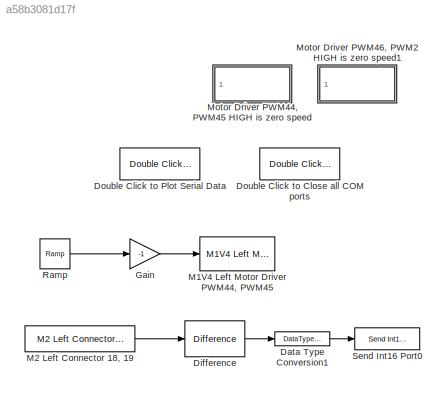
MODEL slx_a58b3081d17f
KIND model
CONFIG AbsTol = auto
CONFIG FixedStep = auto
CONFIG MaxStep = auto
CONFIG MinStep = auto
CONFIG RelTol = 1e-3
CONFIG SampleTimeConstraint = Unconstrained
CONFIG Solver = ode45
CONFIG SolverMode = Auto
CONFIG SolverName = ode45
CONFIG StartTime = 0.0
CONFIG StopTime = 10.0
BLOCK [DataTypeConversion] Data Type Conversion1
  OutDataTypeStr = int16
  RndMeth = Floor
  SaturateOnIntegerOverflow = off
BLOCK [Reference] Difference  REF=simulink/Discrete/Difference
  DoSatur = off
  ICPrevInput = 0.0
  InputProcessing = Inherited
  LockScale = off
  OutDataType = fixdt(1, 16)
  OutDataTypeStr = Inherit: Inherit via internal rule
  OutMax = []
  OutMin = []
  OutScaling = 2^-10
  OutputDataTypeScalingMode = Inherit via internal rule
  Ports = [1, 1]
  RndMeth = Floor
  SourceBlock = simulink/Discrete/Difference
  SourceType = Difference
BLOCK [Reference] Double Click to Close all COM ports  REF=RASPlib/Double Click to
Close all COM ports
  Ports = []
  SourceBlock = RASPlib/Double Click to\nClose all COM ports
BLOCK [Reference] Double Click to Plot Serial Data  REF=RASPlib/Double Click to
Plot Serial Data
  BaudRate = 9600
  COMport = 127
  DataType = int16
  NumSamples = 500
  Ports = []
  SourceBlock = RASPlib/Double Click to\nPlot Serial Data
BLOCK [Gain] Gain
  Gain = -1
  OutDataTypeStr = Inherit: Inherit via internal rule
  ParamDataTypeStr = Inherit: Inherit via internal rule
  SaturateOnIntegerOverflow = off
BLOCK [Reference] M1V4 Left Motor Driver PWM44, PWM45  REF=MinSegLibrary_MinSegMega/M1V4 Left Motor Driver
PWM44, PWM45
  PWMoffset = 0
  Ports = [1]
  SourceBlock = MinSegLibrary_MinSegMega/M1V4 Left Motor Driver\nPWM44, PWM45
  Vsupply = 3.9
BLOCK [Reference] M2 Left Connector 18, 19  REF=MinSegLibrary_MinSegMega/M2 Left Connector 18, 19
  Encoder = 1
  PWMFSelect = 1
  PWMTimer = 3
  PinA = 19
  PinB = 18
  Ports = [0, 1]
  SampleTime = -1
  SourceBlock = MinSegLibrary_MinSegMega/M2 Left Connector 18, 19
  SourceType = Encoder_arduino
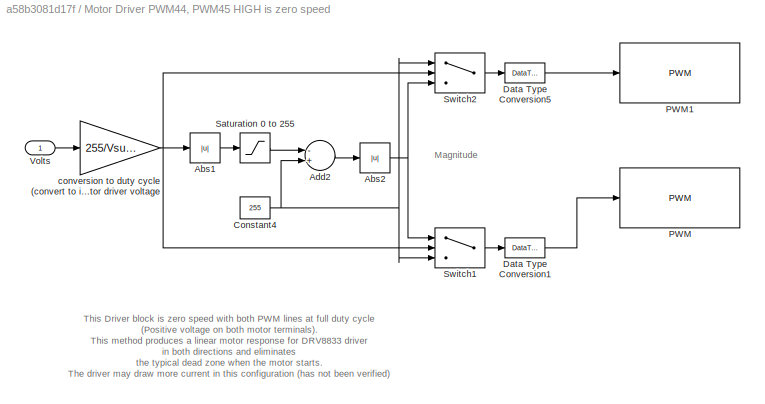
BLOCK [SubSystem] Motor Driver PWM44, PWM45 HIGH is zero speed
  Commented = on
  Ports = [1]
  RequestExecContextInheritance = off
BLOCK [Abs] Motor Driver PWM44, PWM45 HIGH is zero speed/Abs1
  SaturateOnIntegerOverflow = off
BLOCK [Abs] Motor Driver PWM44, PWM45 HIGH is zero speed/Abs2
  SaturateOnIntegerOverflow = off
BLOCK [Sum] Motor Driver PWM44, PWM45 HIGH is zero speed/Add2
  InputSameDT = off
  Inputs = -+
  OutDataTypeStr = Inherit: Inherit via internal rule
  Ports = [2, 1]
  SaturateOnIntegerOverflow = off
BLOCK [Constant] Motor Driver PWM44, PWM45 HIGH is zero speed/Constant4
  Value = 255
BLOCK [DataTypeConversion] Motor Driver PWM44, PWM45 HIGH is zero speed/Data Type Conversion1
  OutDataTypeStr = uint8
  RndMeth = Floor
  SaturateOnIntegerOverflow = off
BLOCK [DataTypeConversion] Motor Driver PWM44, PWM45 HIGH is zero speed/Data Type Conversion5
  OutDataTypeStr = uint8
  RndMeth = Floor
  SaturateOnIntegerOverflow = off
BLOCK [Reference] Motor Driver PWM44, PWM45 HIGH is zero speed/PWM  REF=arduinolib/PWM
  Ports = [1]
  SourceBlock = arduinolib/PWM
  SourceType = Arduino PWM
  blockPlatform = arduino
  pinNumber = 45
BLOCK [Reference] Motor Driver PWM44, PWM45 HIGH is zero speed/PWM1  REF=arduinolib/PWM
  Ports = [1]
  SourceBlock = arduinolib/PWM
  SourceType = Arduino PWM
  blockPlatform = arduino
  pinNumber = 44
BLOCK [Saturate] Motor Driver PWM44, PWM45 HIGH is zero speed/Saturation 0 to 255
  InputPortMap = u0
  LowerLimit = 0
  Ports = [1, 1]
  UpperLimit = 255
BLOCK [Switch] Motor Driver PWM44, PWM45 HIGH is zero speed/Switch1
  InputSameDT = off
  SaturateOnIntegerOverflow = off
BLOCK [Switch] Motor Driver PWM44, PWM45 HIGH is zero speed/Switch2
  InputSameDT = off
  SaturateOnIntegerOverflow = off
BLOCK [Inport] Motor Driver PWM44, PWM45 HIGH is zero speed/Volts
  IconDisplay = Port number
BLOCK [Gain] Motor Driver PWM44, PWM45 HIGH is zero speed/conversion to duty cycle (convert to int) denominator is motor driver voltage
  Gain = 255/Vsupply
  OutDataTypeStr = int16
  ParamDataTypeStr = Inherit: Inherit via internal rule
  SaturateOnIntegerOverflow = off
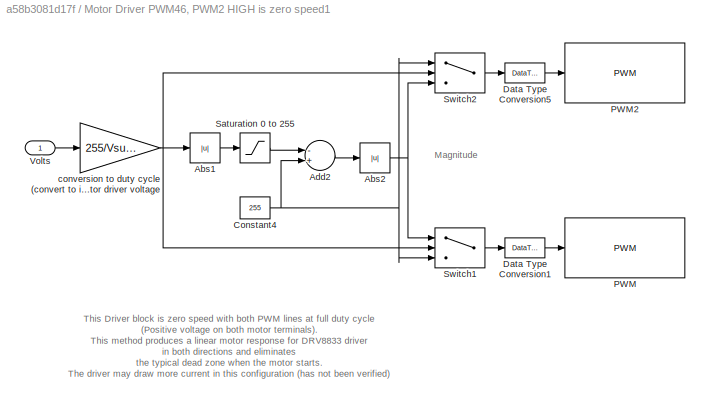
BLOCK [SubSystem] Motor Driver PWM46, PWM2 HIGH is zero speed1
  Commented = on
  Ports = [1]
  RequestExecContextInheritance = off
BLOCK [Abs] Motor Driver PWM46, PWM2 HIGH is zero speed1/Abs1
  SaturateOnIntegerOverflow = off
BLOCK [Abs] Motor Driver PWM46, PWM2 HIGH is zero speed1/Abs2
  SaturateOnIntegerOverflow = off
BLOCK [Sum] Motor Driver PWM46, PWM2 HIGH is zero speed1/Add2
  InputSameDT = off
  Inputs = -+
  OutDataTypeStr = Inherit: Inherit via internal rule
  Ports = [2, 1]
  SaturateOnIntegerOverflow = off
BLOCK [Constant] Motor Driver PWM46, PWM2 HIGH is zero speed1/Constant4
  Value = 255
BLOCK [DataTypeConversion] Motor Driver PWM46, PWM2 HIGH is zero speed1/Data Type Conversion1
  OutDataTypeStr = uint8
  RndMeth = Floor
  SaturateOnIntegerOverflow = off
BLOCK [DataTypeConversion] Motor Driver PWM46, PWM2 HIGH is zero speed1/Data Type Conversion5
  OutDataTypeStr = uint8
  RndMeth = Floor
  SaturateOnIntegerOverflow = off
BLOCK [Reference] Motor Driver PWM46, PWM2 HIGH is zero speed1/PWM  REF=arduinolib/PWM
  Ports = [1]
  SourceBlock = arduinolib/PWM
  SourceType = Arduino PWM
  blockPlatform = arduino
  pinNumber = 2
BLOCK [Reference] Motor Driver PWM46, PWM2 HIGH is zero speed1/PWM2  REF=arduinolib/PWM
  Ports = [1]
  SourceBlock = arduinolib/PWM
  SourceType = Arduino PWM
  blockPlatform = arduino
  pinNumber = 46
BLOCK [Saturate] Motor Driver PWM46, PWM2 HIGH is zero speed1/Saturation 0 to 255
  InputPortMap = u0
  LowerLimit = 0
  Ports = [1, 1]
  UpperLimit = 255
BLOCK [Switch] Motor Driver PWM46, PWM2 HIGH is zero speed1/Switch1
  InputSameDT = off
  SaturateOnIntegerOverflow = off
BLOCK [Switch] Motor Driver PWM46, PWM2 HIGH is zero speed1/Switch2
  InputSameDT = off
  SaturateOnIntegerOverflow = off
BLOCK [Inport] Motor Driver PWM46, PWM2 HIGH is zero speed1/Volts
  IconDisplay = Port number
BLOCK [Gain] Motor Driver PWM46, PWM2 HIGH is zero speed1/conversion to duty cycle (convert to int) denominator is motor driver voltage
  Gain = 255/Vsupply
  OutDataTypeStr = int16
  ParamDataTypeStr = Inherit: Inherit via internal rule
  SaturateOnIntegerOverflow = off
BLOCK [Reference] Ramp  REF=simulink/Sources/Ramp
  Ports = [0, 1]
  SourceBlock = simulink/Sources/Ramp
  SourceType = Ramp
  VectorParams1D = on
  X0 = 0
  slope = .05
  start = 0
BLOCK [Reference] Send Int16 Port0  REF=RASPlib/Send Int16 Port0
  Ports = [1]
  SourceBlock = RASPlib/Send Int16 Port0
  SourceType = SubSystem
ANNOTATION Motor Driver PWM44, PWM45 HIGH is zero speed: Magnitude
ANNOTATION Motor Driver PWM44, PWM45 HIGH is zero speed: This Driver block is zero speed with both PWM lines at full duty cycle (Positive voltage on both motor terminals). This method produces a linear motor response for DRV8833 driver in both directions and eliminates the typical dead zone when the motor starts. The driver may draw more current in this configuration (has not been verified) The SN754410 driver this has no effect, so the driver could alt...<+76ch>
ANNOTATION Motor Driver PWM46, PWM2 HIGH is zero speed1: Magnitude
ANNOTATION Motor Driver PWM46, PWM2 HIGH is zero speed1: This Driver block is zero speed with both PWM lines at full duty cycle (Positive voltage on both motor terminals). This method produces a linear motor response for DRV8833 driver in both directions and eliminates the typical dead zone when the motor starts. The driver may draw more current in this configuration (has not been verified) The SN754410 driver this has no effect, so the driver could alt...<+76ch>
LINE Data Type Conversion1:1 -> Send Int16 Port0:1
LINE Difference:1 -> Data Type Conversion1:1
LINE Gain:1 -> M1V4 Left Motor Driver PWM44, PWM45:1
LINE M2 Left Connector 18, 19:1 -> Difference:1
LINE Motor Driver PWM44, PWM45 HIGH is zero speed/Abs1:1 -> Motor Driver PWM44, PWM45 HIGH is zero speed/Saturation 0 to 255:1
NET Motor Driver PWM44, PWM45 HIGH is zero speed/Abs2:1 -> Motor Driver PWM44, PWM45 HIGH is zero speed/Switch1:1, Motor Driver PWM44, PWM45 HIGH is zero speed/Switch2:3
LINE Motor Driver PWM44, PWM45 HIGH is zero speed/Add2:1 -> Motor Driver PWM44, PWM45 HIGH is zero speed/Abs2:1
NET Motor Driver PWM44, PWM45 HIGH is zero speed/Constant4:1 -> Motor Driver PWM44, PWM45 HIGH is zero speed/Add2:2, Motor Driver PWM44, PWM45 HIGH is zero speed/Switch1:3, Motor Driver PWM44, PWM45 HIGH is zero speed/Switch2:1
LINE Motor Driver PWM44, PWM45 HIGH is zero speed/Data Type Conversion1:1 -> Motor Driver PWM44, PWM45 HIGH is zero speed/PWM:1
LINE Motor Driver PWM44, PWM45 HIGH is zero speed/Data Type Conversion5:1 -> Motor Driver PWM44, PWM45 HIGH is zero speed/PWM1:1
LINE Motor Driver PWM44, PWM45 HIGH is zero speed/Saturation 0 to 255:1 -> Motor Driver PWM44, PWM45 HIGH is zero speed/Add2:1
LINE Motor Driver PWM44, PWM45 HIGH is zero speed/Switch1:1 -> Motor Driver PWM44, PWM45 HIGH is zero speed/Data Type Conversion1:1
LINE Motor Driver PWM44, PWM45 HIGH is zero speed/Switch2:1 -> Motor Driver PWM44, PWM45 HIGH is zero speed/Data Type Conversion5:1
LINE Motor Driver PWM44, PWM45 HIGH is zero speed/Volts:1 -> Motor Driver PWM44, PWM45 HIGH is zero speed/conversion to duty cycle (convert to int) denominator is motor driver voltage:1
NET Motor Driver PWM44, PWM45 HIGH is zero speed/conversion to duty cycle (convert to int) denominator is motor driver voltage:1 -> Motor Driver PWM44, PWM45 HIGH is zero speed/Abs1:1, Motor Driver PWM44, PWM45 HIGH is zero speed/Switch1:2, Motor Driver PWM44, PWM45 HIGH is zero speed/Switch2:2
LINE Motor Driver PWM46, PWM2 HIGH is zero speed1/Abs1:1 -> Motor Driver PWM46, PWM2 HIGH is zero speed1/Saturation 0 to 255:1
NET Motor Driver PWM46, PWM2 HIGH is zero speed1/Abs2:1 -> Motor Driver PWM46, PWM2 HIGH is zero speed1/Switch1:1, Motor Driver PWM46, PWM2 HIGH is zero speed1/Switch2:3
LINE Motor Driver PWM46, PWM2 HIGH is zero speed1/Add2:1 -> Motor Driver PWM46, PWM2 HIGH is zero speed1/Abs2:1
NET Motor Driver PWM46, PWM2 HIGH is zero speed1/Constant4:1 -> Motor Driver PWM46, PWM2 HIGH is zero speed1/Add2:2, Motor Driver PWM46, PWM2 HIGH is zero speed1/Switch1:3, Motor Driver PWM46, PWM2 HIGH is zero speed1/Switch2:1
LINE Motor Driver PWM46, PWM2 HIGH is zero speed1/Data Type Conversion1:1 -> Motor Driver PWM46, PWM2 HIGH is zero speed1/PWM:1
LINE Motor Driver PWM46, PWM2 HIGH is zero speed1/Data Type Conversion5:1 -> Motor Driver PWM46, PWM2 HIGH is zero speed1/PWM2:1
LINE Motor Driver PWM46, PWM2 HIGH is zero speed1/Saturation 0 to 255:1 -> Motor Driver PWM46, PWM2 HIGH is zero speed1/Add2:1
LINE Motor Driver PWM46, PWM2 HIGH is zero speed1/Switch1:1 -> Motor Driver PWM46, PWM2 HIGH is zero speed1/Data Type Conversion1:1
LINE Motor Driver PWM46, PWM2 HIGH is zero speed1/Switch2:1 -> Motor Driver PWM46, PWM2 HIGH is zero speed1/Data Type Conversion5:1
LINE Motor Driver PWM46, PWM2 HIGH is zero speed1/Volts:1 -> Motor Driver PWM46, PWM2 HIGH is zero speed1/conversion to duty cycle (convert to int) denominator is motor driver voltage:1
NET Motor Driver PWM46, PWM2 HIGH is zero speed1/conversion to duty cycle (convert to int) denominator is motor driver voltage:1 -> Motor Driver PWM46, PWM2 HIGH is zero speed1/Abs1:1, Motor Driver PWM46, PWM2 HIGH is zero speed1/Switch1:2, Motor Driver PWM46, PWM2 HIGH is zero speed1/Switch2:2
LINE Ramp:1 -> Gain:1
note: NET lines group one-source signal fan-out (src -> all destinations, sorted); 1:1 wires keep LINE
